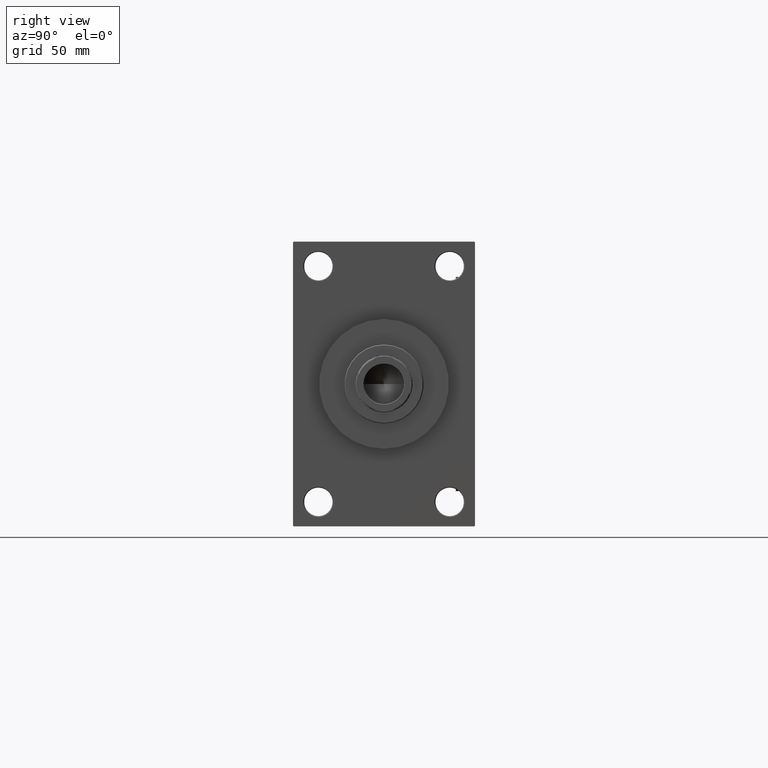
[diagram: clean part render]
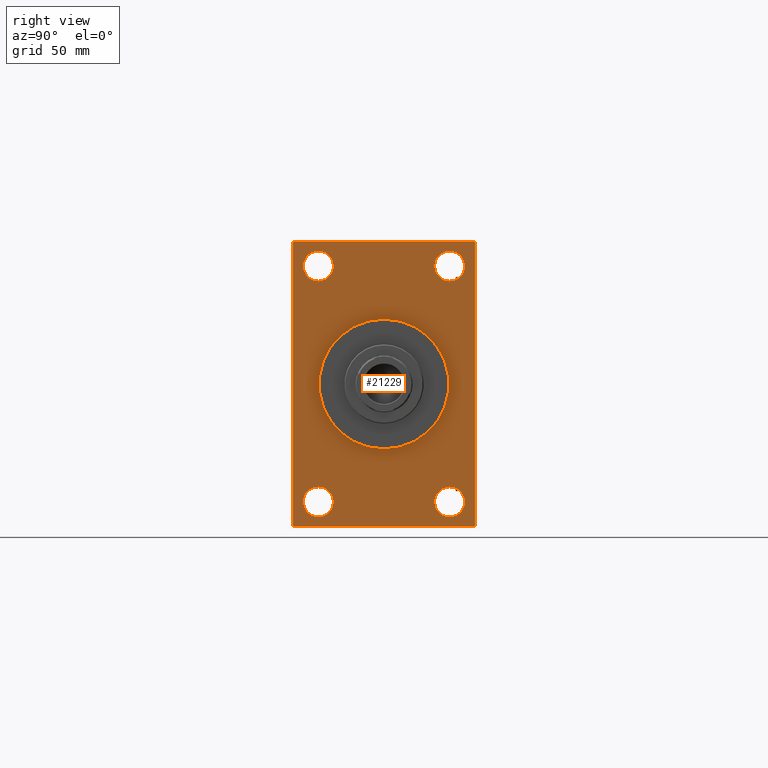
[diagram: same view with one face highlighted and labeled with its STEP entity id]
A machine part, right view. The second image highlights one B-rep face of the part: STEP entity #21229.
In plain terms, the highlighted planar face has unit normal (-1, 0, 0).
Its self-contained STEP definition (entity closure, byte-faithful):
#9 = CARTESIAN_POINT ( 'NONE',  ( 338.9999999999999432, -57.00000000000007105, 89.99999999999997158 ) ) ;
#412 = LINE ( 'NONE', #7732, #8225 ) ;
#685 = DIRECTION ( 'NONE',  ( 0.000000000000000000, 0.000000000000000000, -1.000000000000000000 ) ) ;
#1122 = ORIENTED_EDGE ( 'NONE', *, *, #32204, .T. ) ;
#1132 = CARTESIAN_POINT ( 'NONE',  ( 338.9999999999999432, -41.49999999999999289, 84.00000000000007105 ) ) ;
#1620 = CARTESIAN_POINT ( 'NONE',  ( 338.9999999999999432, -41.49999999999999289, 74.50000000000001421 ) ) ;
#2261 = EDGE_CURVE ( 'NONE', #30671, #41162, #14648, .T. ) ;
#3375 = ORIENTED_EDGE ( 'NONE', *, *, #35669, .T. ) ;
#3720 = AXIS2_PLACEMENT_3D ( 'NONE', #11514, #35475, #27171 ) ;
#3742 = DIRECTION ( 'NONE',  ( -1.000000000000000000, 0.000000000000000000, -0.000000000000000000 ) ) ;
#4391 = VECTOR ( 'NONE', #11490, 1000.000000000000114 ) ;
#4534 = VECTOR ( 'NONE', #42942, 1000.000000000000000 ) ;
#5168 = ORIENTED_EDGE ( 'NONE', *, *, #12704, .T. ) ;
#5294 = CIRCLE ( 'NONE', #44781, 9.499999999999896971 ) ;
#5297 = DIRECTION ( 'NONE',  ( -1.000000000000000000, 0.000000000000000000, -0.000000000000000000 ) ) ;
#5514 = AXIS2_PLACEMENT_3D ( 'NONE', #36684, #16750, #31903 ) ;
#6711 = CARTESIAN_POINT ( 'NONE',  ( 338.9999999999999432, -57.50000000000002132, 89.49999999999997158 ) ) ;
#7183 = CARTESIAN_POINT ( 'NONE',  ( 338.9999999999999432, 57.49999999999997158, 89.99999999999998579 ) ) ;
#7320 = ORIENTED_EDGE ( 'NONE', *, *, #42569, .T. ) ;
#7338 = CARTESIAN_POINT ( 'NONE',  ( 338.9999999999999432, 56.99999999999992184, 89.99999999999998579 ) ) ;
#7732 = CARTESIAN_POINT ( 'NONE',  ( 338.9999999999999432, 57.49999999999997868, -89.50000000000001421 ) ) ;
#7865 = VECTOR ( 'NONE', #27795, 1000.000000000000000 ) ;
#7923 = DIRECTION ( 'NONE',  ( -0.000000000000000000, 0.000000000000000000, 1.000000000000000000 ) ) ;
#8225 = VECTOR ( 'NONE', #27178, 1000.000000000000000 ) ;
#8657 = CARTESIAN_POINT ( 'NONE',  ( 338.9999999999999432, 41.50000000000000711, -84.00000000000005684 ) ) ;
#9010 = VERTEX_POINT ( 'NONE', #28978 ) ;
#9396 = DIRECTION ( 'NONE',  ( 1.000000000000000000, 0.000000000000000000, 0.000000000000000000 ) ) ;
#10381 = EDGE_LOOP ( 'NONE', ( #18130, #17626, #16139, #5168, #25347, #25313, #18041, #20039 ) ) ;
#10570 = VECTOR ( 'NONE', #22575, 1000.000000000000000 ) ;
#11244 = EDGE_CURVE ( 'NONE', #11434, #42584, #49777, .T. ) ;
#11434 = VERTEX_POINT ( 'NONE', #42964 ) ;
#11490 = DIRECTION ( 'NONE',  ( 0.000000000000000000, 0.7071067811865965336, -0.7071067811864985009 ) ) ;
#11514 = CARTESIAN_POINT ( 'NONE',  ( 338.9999999999999432, 41.50000000000000711, 74.50000000000001421 ) ) ;
#11708 = EDGE_CURVE ( 'NONE', #40372, #40295, #35783, .T. ) ;
#11711 = DIRECTION ( 'NONE',  ( -1.000000000000000000, 0.000000000000000000, -0.000000000000000000 ) ) ;
#12122 = CARTESIAN_POINT ( 'NONE',  ( 338.9999999999999432, 5.021051876504148963E-15, -41.00000000000000000 ) ) ;
#12219 = VERTEX_POINT ( 'NONE', #41965 ) ;
#12222 = CARTESIAN_POINT ( 'NONE',  ( 338.9999999999999432, -41.49999999999999289, -74.49999999999998579 ) ) ;
#12455 = FACE_BOUND ( 'NONE', #18996, .T. ) ;
#12704 = EDGE_CURVE ( 'NONE', #22652, #42584, #412, .T. ) ;
#13157 = CARTESIAN_POINT ( 'NONE',  ( 338.9999999999999432, -57.50000000000002132, 89.49999999999997158 ) ) ;
#13178 = VECTOR ( 'NONE', #45087, 1000.000000000000000 ) ;
#13416 = CIRCLE ( 'NONE', #3720, 9.500000000000063949 ) ;
#14080 = CARTESIAN_POINT ( 'NONE',  ( 338.9999999999999432, 57.49999999999997868, -90.00000000000000000 ) ) ;
#14105 = VECTOR ( 'NONE', #20323, 1000.000000000000000 ) ;
#14540 = CARTESIAN_POINT ( 'NONE',  ( 338.9999999999999432, -41.49999999999999289, 64.99999999999994316 ) ) ;
#14645 = VECTOR ( 'NONE', #35538, 1000.000000000000000 ) ;
#14648 = CIRCLE ( 'NONE', #42834, 41.00000000000000000 ) ;
#14909 = CARTESIAN_POINT ( 'NONE',  ( 338.9999999999999432, -57.00000000000002132, -90.00000000000001421 ) ) ;
#15094 = CARTESIAN_POINT ( 'NONE',  ( 338.9999999999999432, 41.50000000000000711, 84.00000000000007105 ) ) ;
#15501 = FACE_BOUND ( 'NONE', #40946, .T. ) ;
#15587 = CARTESIAN_POINT ( 'NONE',  ( 338.9999999999999432, -57.50000000000002132, -89.50000000000002842 ) ) ;
#15802 = AXIS2_PLACEMENT_3D ( 'NONE', #1620, #47757, #44253 ) ;
#16000 = FACE_OUTER_BOUND ( 'NONE', #10381, .T. ) ;
#16070 = AXIS2_PLACEMENT_3D ( 'NONE', #34840, #16408, #46662 ) ;
#16139 = ORIENTED_EDGE ( 'NONE', *, *, #36844, .F. ) ;
#16272 = LINE ( 'NONE', #26899, #14105 ) ;
#16408 = DIRECTION ( 'NONE',  ( -1.000000000000000000, 0.000000000000000000, -0.000000000000000000 ) ) ;
#16596 = VERTEX_POINT ( 'NONE', #15587 ) ;
#16750 = DIRECTION ( 'NONE',  ( -1.000000000000000000, 0.000000000000000000, -0.000000000000000000 ) ) ;
#17035 = ORIENTED_EDGE ( 'NONE', *, *, #28020, .F. ) ;
#17626 = ORIENTED_EDGE ( 'NONE', *, *, #39744, .T. ) ;
#18041 = ORIENTED_EDGE ( 'NONE', *, *, #11708, .T. ) ;
#18130 = ORIENTED_EDGE ( 'NONE', *, *, #43857, .T. ) ;
#18536 = ORIENTED_EDGE ( 'NONE', *, *, #46998, .T. ) ;
#18750 = VERTEX_POINT ( 'NONE', #18808 ) ;
#18808 = CARTESIAN_POINT ( 'NONE',  ( 338.9999999999999432, 41.50000000000000711, -64.99999999999992895 ) ) ;
#18996 = EDGE_LOOP ( 'NONE', ( #22578, #17035 ) ) ;
#19137 = CIRCLE ( 'NONE', #36057, 9.500000000000063949 ) ;
#19215 = VERTEX_POINT ( 'NONE', #24021 ) ;
#19547 = FACE_BOUND ( 'NONE', #27650, .T. ) ;
#19796 = FACE_BOUND ( 'NONE', #39999, .T. ) ;
#19913 = CARTESIAN_POINT ( 'NONE',  ( 338.9999999999999432, 57.49999999999997158, 89.99999999999998579 ) ) ;
#20039 = ORIENTED_EDGE ( 'NONE', *, *, #46309, .T. ) ;
#20063 = CARTESIAN_POINT ( 'NONE',  ( 338.9999999999999432, 57.49999999999997868, -89.49999999999995737 ) ) ;
#20158 = DIRECTION ( 'NONE',  ( -1.000000000000000000, 0.000000000000000000, -0.000000000000000000 ) ) ;
#20323 = DIRECTION ( 'NONE',  ( 0.000000000000000000, -0.7071067811865867636, 0.7071067811865081598 ) ) ;
#20630 = AXIS2_PLACEMENT_3D ( 'NONE', #27447, #23911, #685 ) ;
#21229 = ADVANCED_FACE ( 'NONE', ( #35668, #19547, #19796, #15501, #12455, #16000 ), #42976, .F. ) ;
#22575 = DIRECTION ( 'NONE',  ( 0.000000000000000000, 3.854941057726238467E-17, -1.000000000000000000 ) ) ;
#22578 = ORIENTED_EDGE ( 'NONE', *, *, #2261, .F. ) ;
#22652 = VERTEX_POINT ( 'NONE', #23908 ) ;
#22735 = ORIENTED_EDGE ( 'NONE', *, *, #43653, .T. ) ;
#22941 = CIRCLE ( 'NONE', #30970, 9.499999999999896971 ) ;
#23875 = CIRCLE ( 'NONE', #15802, 9.500000000000063949 ) ;
#23908 = CARTESIAN_POINT ( 'NONE',  ( 338.9999999999999432, 57.00000000000003553, -90.00000000000000000 ) ) ;
#23911 = DIRECTION ( 'NONE',  ( 1.000000000000000000, 0.000000000000000000, 0.000000000000000000 ) ) ;
#24021 = CARTESIAN_POINT ( 'NONE',  ( 338.9999999999999432, 41.50000000000000711, 64.99999999999994316 ) ) ;
#24281 = VERTEX_POINT ( 'NONE', #14909 ) ;
#24686 = CARTESIAN_POINT ( 'NONE',  ( 338.9999999999999432, 41.50000000000000711, 74.50000000000001421 ) ) ;
#25297 = DIRECTION ( 'NONE',  ( 0.000000000000000000, 0.000000000000000000, -1.000000000000000000 ) ) ;
#25313 = ORIENTED_EDGE ( 'NONE', *, *, #26366, .T. ) ;
#25347 = ORIENTED_EDGE ( 'NONE', *, *, #11244, .F. ) ;
#25734 = CIRCLE ( 'NONE', #49890, 9.500000000000063949 ) ;
#26366 = EDGE_CURVE ( 'NONE', #11434, #40372, #16272, .T. ) ;
#26559 = CIRCLE ( 'NONE', #16070, 9.500000000000063949 ) ;
#26840 = ORIENTED_EDGE ( 'NONE', *, *, #36099, .T. ) ;
#26898 = CARTESIAN_POINT ( 'NONE',  ( 338.9999999999999432, -57.00000000000002132, -90.00000000000001421 ) ) ;
#26899 = CARTESIAN_POINT ( 'NONE',  ( 338.9999999999999432, 56.99999999999992184, 89.99999999999998579 ) ) ;
#27171 = DIRECTION ( 'NONE',  ( 0.000000000000000000, 0.000000000000000000, 1.000000000000000000 ) ) ;
#27178 = DIRECTION ( 'NONE',  ( -0.000000000000000000, 0.7071067811865181518, 0.7071067811865769936 ) ) ;
#27447 = CARTESIAN_POINT ( 'NONE',  ( 338.9999999999999432, 0.000000000000000000, 0.000000000000000000 ) ) ;
#27453 = DIRECTION ( 'NONE',  ( 0.000000000000000000, 0.000000000000000000, 1.000000000000000000 ) ) ;
#27570 = CARTESIAN_POINT ( 'NONE',  ( 338.9999999999999432, -57.50000000000002132, 89.99999999999997158 ) ) ;
#27650 = EDGE_LOOP ( 'NONE', ( #7320, #45798 ) ) ;
#27795 = DIRECTION ( 'NONE',  ( -0.000000000000000000, -0.7071067811865131558, -0.7071067811865818786 ) ) ;
#28020 = EDGE_CURVE ( 'NONE', #41162, #30671, #28693, .T. ) ;
#28550 = AXIS2_PLACEMENT_3D ( 'NONE', #31888, #11711, #7923 ) ;
#28580 = CARTESIAN_POINT ( 'NONE',  ( 338.9999999999999432, 0.000000000000000000, 0.000000000000000000 ) ) ;
#28659 = VERTEX_POINT ( 'NONE', #1132 ) ;
#28693 = CIRCLE ( 'NONE', #20630, 41.00000000000000000 ) ;
#28978 = CARTESIAN_POINT ( 'NONE',  ( 338.9999999999999432, -41.49999999999999289, -65.00000000000008527 ) ) ;
#29376 = EDGE_CURVE ( 'NONE', #39470, #19215, #13416, .T. ) ;
#30386 = ORIENTED_EDGE ( 'NONE', *, *, #29376, .T. ) ;
#30493 = CARTESIAN_POINT ( 'NONE',  ( 338.9999999999999432, -41.49999999999999289, -74.49999999999998579 ) ) ;
#30671 = VERTEX_POINT ( 'NONE', #46803 ) ;
#30970 = AXIS2_PLACEMENT_3D ( 'NONE', #30493, #3742, #27453 ) ;
#31107 = LINE ( 'NONE', #27570, #4534 ) ;
#31888 = CARTESIAN_POINT ( 'NONE',  ( 338.9999999999999432, 0.000000000000000000, 0.000000000000000000 ) ) ;
#31903 = DIRECTION ( 'NONE',  ( 0.000000000000000000, 0.000000000000000000, 1.000000000000000000 ) ) ;
#32204 = EDGE_CURVE ( 'NONE', #28659, #39680, #19137, .T. ) ;
#34840 = CARTESIAN_POINT ( 'NONE',  ( 338.9999999999999432, 41.50000000000000711, -74.50000000000000000 ) ) ;
#35475 = DIRECTION ( 'NONE',  ( -1.000000000000000000, 0.000000000000000000, -0.000000000000000000 ) ) ;
#35538 = DIRECTION ( 'NONE',  ( 0.000000000000000000, -1.000000000000000000, -1.206764157201257291E-16 ) ) ;
#35668 = FACE_BOUND ( 'NONE', #47690, .T. ) ;
#35669 = EDGE_CURVE ( 'NONE', #18750, #37894, #26559, .T. ) ;
#35783 = LINE ( 'NONE', #19913, #14645 ) ;
#36057 = AXIS2_PLACEMENT_3D ( 'NONE', #43874, #5297, #37065 ) ;
#36099 = EDGE_CURVE ( 'NONE', #19215, #39470, #25734, .T. ) ;
#36684 = CARTESIAN_POINT ( 'NONE',  ( 338.9999999999999432, 41.50000000000000711, -74.50000000000000000 ) ) ;
#36844 = EDGE_CURVE ( 'NONE', #22652, #24281, #48602, .T. ) ;
#37065 = DIRECTION ( 'NONE',  ( 0.000000000000000000, 0.000000000000000000, 1.000000000000000000 ) ) ;
#37894 = VERTEX_POINT ( 'NONE', #8657 ) ;
#38731 = LINE ( 'NONE', #26898, #4391 ) ;
#39470 = VERTEX_POINT ( 'NONE', #15094 ) ;
#39481 = EDGE_CURVE ( 'NONE', #9010, #12219, #22941, .T. ) ;
#39680 = VERTEX_POINT ( 'NONE', #14540 ) ;
#39708 = DIRECTION ( 'NONE',  ( -1.000000000000000000, 0.000000000000000000, -0.000000000000000000 ) ) ;
#39744 = EDGE_CURVE ( 'NONE', #16596, #24281, #38731, .T. ) ;
#39999 = EDGE_LOOP ( 'NONE', ( #18536, #3375 ) ) ;
#40058 = DIRECTION ( 'NONE',  ( 0.000000000000000000, 0.000000000000000000, 1.000000000000000000 ) ) ;
#40295 = VERTEX_POINT ( 'NONE', #9 ) ;
#40372 = VERTEX_POINT ( 'NONE', #7338 ) ;
#40946 = EDGE_LOOP ( 'NONE', ( #26840, #30386 ) ) ;
#41162 = VERTEX_POINT ( 'NONE', #12122 ) ;
#41965 = CARTESIAN_POINT ( 'NONE',  ( 338.9999999999999432, -41.49999999999999289, -83.99999999999988631 ) ) ;
#42502 = CIRCLE ( 'NONE', #5514, 9.500000000000063949 ) ;
#42518 = VERTEX_POINT ( 'NONE', #6711 ) ;
#42569 = EDGE_CURVE ( 'NONE', #12219, #9010, #5294, .T. ) ;
#42584 = VERTEX_POINT ( 'NONE', #20063 ) ;
#42834 = AXIS2_PLACEMENT_3D ( 'NONE', #28580, #9396, #25297 ) ;
#42942 = DIRECTION ( 'NONE',  ( 0.000000000000000000, 0.000000000000000000, -1.000000000000000000 ) ) ;
#42964 = CARTESIAN_POINT ( 'NONE',  ( 338.9999999999999432, 57.49999999999997158, 89.49999999999998579 ) ) ;
#42976 = PLANE ( 'NONE',  #28550 ) ;
#42992 = DIRECTION ( 'NONE',  ( 0.000000000000000000, 0.000000000000000000, 1.000000000000000000 ) ) ;
#43653 = EDGE_CURVE ( 'NONE', #39680, #28659, #23875, .T. ) ;
#43857 = EDGE_CURVE ( 'NONE', #42518, #16596, #31107, .T. ) ;
#43874 = CARTESIAN_POINT ( 'NONE',  ( 338.9999999999999432, -41.49999999999999289, 74.50000000000001421 ) ) ;
#44253 = DIRECTION ( 'NONE',  ( 0.000000000000000000, 0.000000000000000000, 1.000000000000000000 ) ) ;
#44781 = AXIS2_PLACEMENT_3D ( 'NONE', #12222, #39708, #42992 ) ;
#45087 = DIRECTION ( 'NONE',  ( 0.000000000000000000, -1.000000000000000000, -1.206764157201257045E-16 ) ) ;
#45798 = ORIENTED_EDGE ( 'NONE', *, *, #39481, .T. ) ;
#46309 = EDGE_CURVE ( 'NONE', #40295, #42518, #47684, .T. ) ;
#46662 = DIRECTION ( 'NONE',  ( 0.000000000000000000, 0.000000000000000000, 1.000000000000000000 ) ) ;
#46803 = CARTESIAN_POINT ( 'NONE',  ( 338.9999999999999432, 0.000000000000000000, 41.00000000000000000 ) ) ;
#46998 = EDGE_CURVE ( 'NONE', #37894, #18750, #42502, .T. ) ;
#47684 = LINE ( 'NONE', #13157, #7865 ) ;
#47690 = EDGE_LOOP ( 'NONE', ( #22735, #1122 ) ) ;
#47757 = DIRECTION ( 'NONE',  ( -1.000000000000000000, 0.000000000000000000, -0.000000000000000000 ) ) ;
#48602 = LINE ( 'NONE', #14080, #13178 ) ;
#49777 = LINE ( 'NONE', #7183, #10570 ) ;
#49890 = AXIS2_PLACEMENT_3D ( 'NONE', #24686, #20158, #40058 ) ;